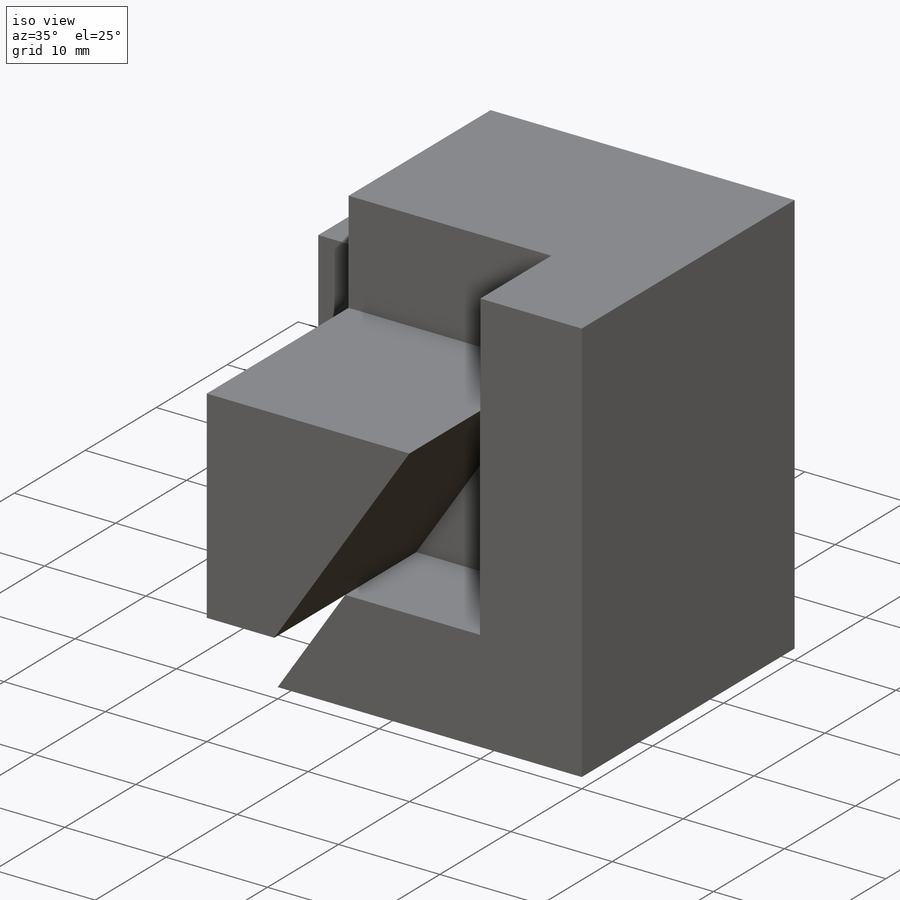
[diagram: iso view]
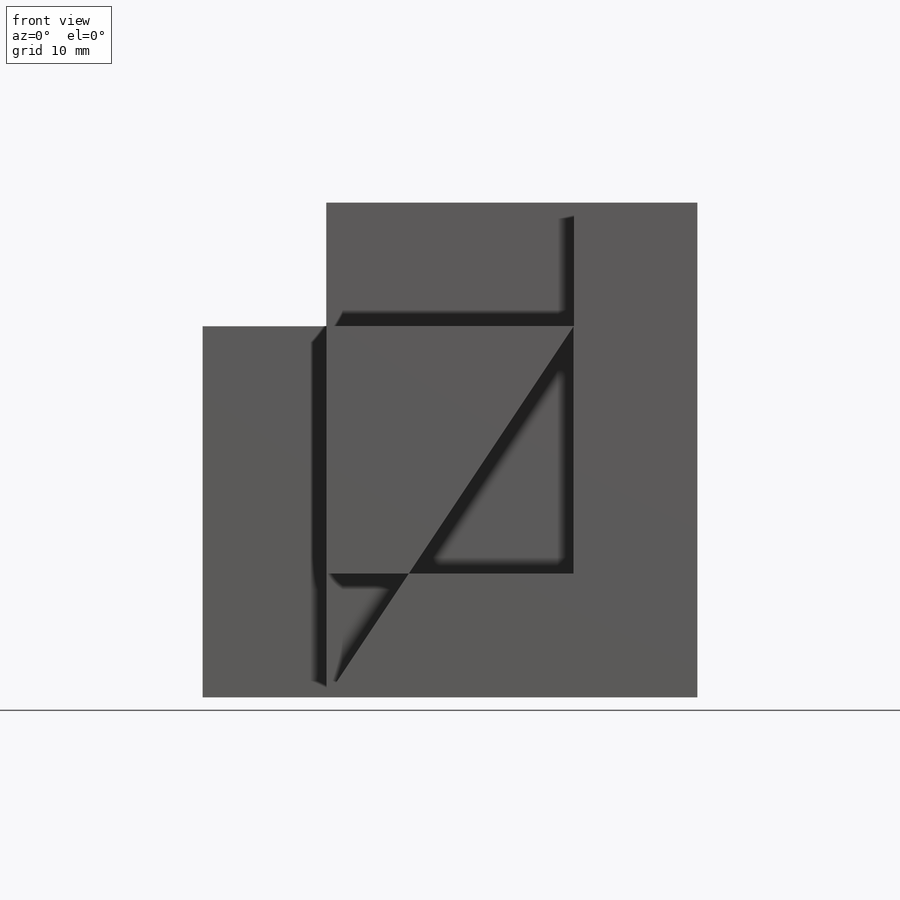
[diagram: front view]
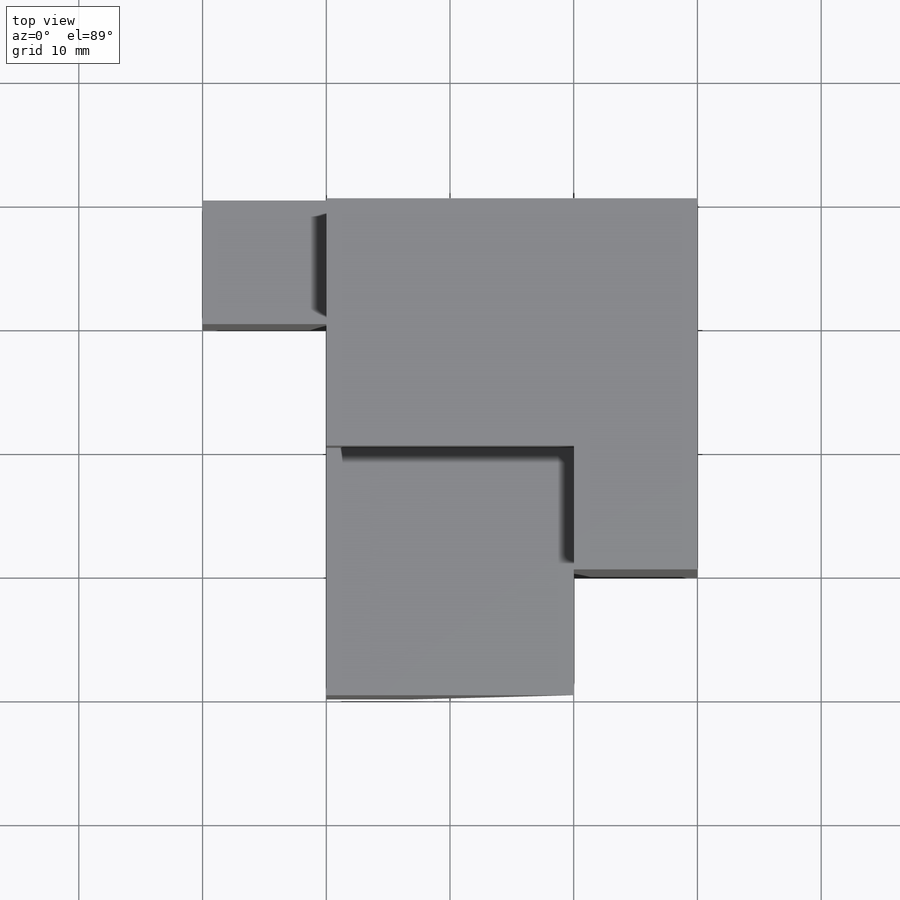
[diagram: top view]
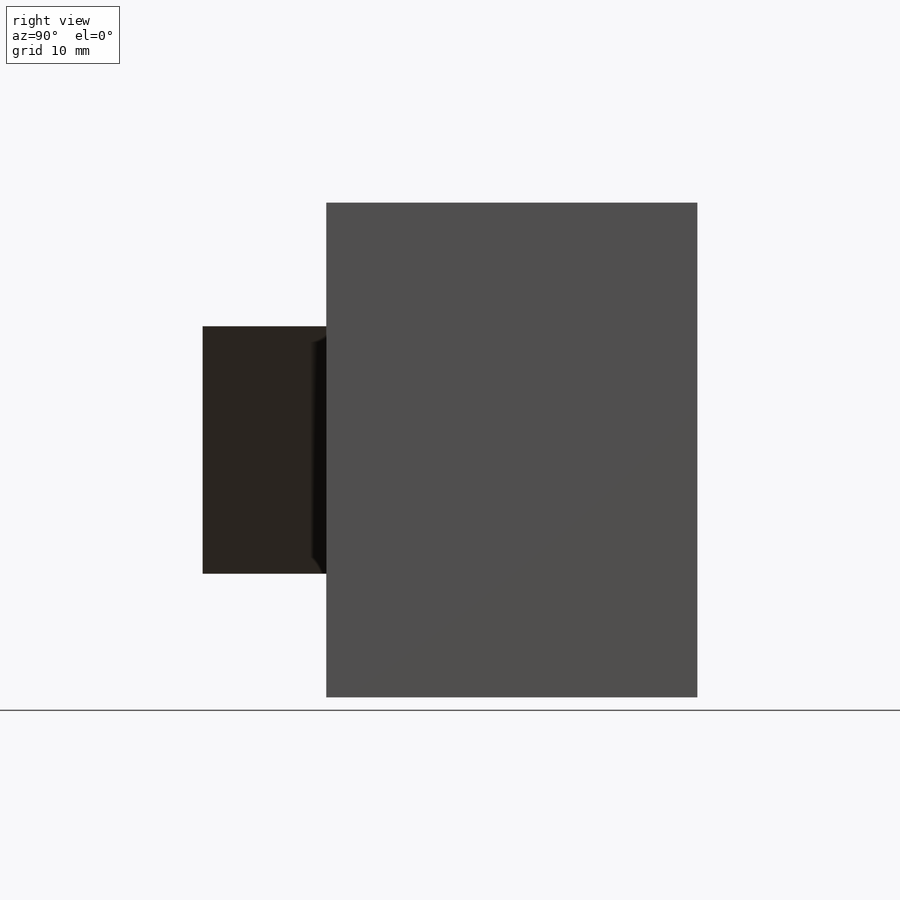
[diagram: right view]
SOLIDWORKS PART (.sldprt)
format: sldprt  version: not decoded by parser v0  size: 411,136 bytes
history: native  units: mm
features: sketch x24, cut_extrude x15, extrude x9, material x1, plane x1 (+13 scaffold rows collapsed)
feature tree (63):
  scaffold x13  (default folders/planes/origin — collapsed)
  material  "Material <not specified>"
  sketch  "Sketch1"  dims[D1=40.0mm D2=40.0mm]
  extrude  "Boss-Extrude1"  Depth=40mm
  sketch  "Sketch2"  dims[D1=10.0mm D2=10.0mm]
  cut_extrude  "Cut-Extrude1"  Depth=40mm
  sketch  "Sketch4"  dims[D1=10.0mm D2=10.0mm D3=10.0mm D4=30.0mm]
  cut_extrude  "Cut-Extrude2"  Depth=40mm
  sketch  "Sketch5"  dims[D1=10.0mm]
  cut_extrude  "Cut-Extrude3"  Depth=10mm
  sketch  "Sketch7"  dims[D1=10.0mm]
  cut_extrude  "Cut-Extrude16"  Depth=20mm
  sketch  "Sketch11"
  cut_extrude  "Cut-Extrude19"  Depth=10mm
  sketch  "Sketch12"
  cut_extrude  "Cut-Extrude20"  Depth=10mm
  sketch  "Sketch13"
  cut_extrude  "Cut-Extrude21"  Depth=10mm
  plane  "Plane1"
  sketch  "Sketch15"
  extrude  "Boss-Extrude2"  Depth=10mm
  sketch  "Sketch16"  dims[D1=20.0mm D2=20.0mm]
  cut_extrude  "Cut-Extrude25"  Depth=10mm
  sketch  "Sketch19"  dims[D1=20.0mm D2=30.0mm]
  cut_extrude  "Cut-Extrude26"  Depth=10mm
  sketch  "Sketch22"
  extrude  "Boss-Extrude5"  Depth=10mm
  sketch  "Sketch23"
  extrude  "Boss-Extrude6"  Depth=10mm
  sketch  "Sketch24"  dims[D1=20.0mm]
  extrude  "Boss-Extrude7"  Depth=10mm
  sketch  "Sketch25"
  extrude  "Boss-Extrude8"  Depth=10mm
  sketch  "Sketch26"  dims[D1=20.0mm]
  extrude  "Boss-Extrude9"  Depth=10mm
  sketch  "Sketch27"
  cut_extrude  "Cut-Extrude27"  Depth=10mm
  sketch  "Sketch28"
  extrude  "Boss-Extrude12"  Depth=10mm
  sketch  "Sketch29"  dims[D1=13.3mm]
  cut_extrude  "Cut-Extrude30"  Depth=20mm
  sketch  "Sketch30"  dims[D1=20.0mm]
  cut_extrude  "Cut-Extrude31"  Depth=10mm
  sketch  "Sketch32"
  cut_extrude  "Cut-Extrude36"  Depth=10mm
  sketch  "Sketch33"
  cut_extrude  "Cut-Extrude37"  Depth=10mm
  sketch  "Sketch34"
  extrude  "Boss-Extrude13"  Depth=10mm
  sketch  "Sketch35"  dims[D1=9.999mm]
  cut_extrude  "Cut-Extrude40"  Depth=20mm
decode coverage: 36 of 48 modeling features carry decoded parameters
note: suppression state not decoded; provenance and decode notes live in map.json
